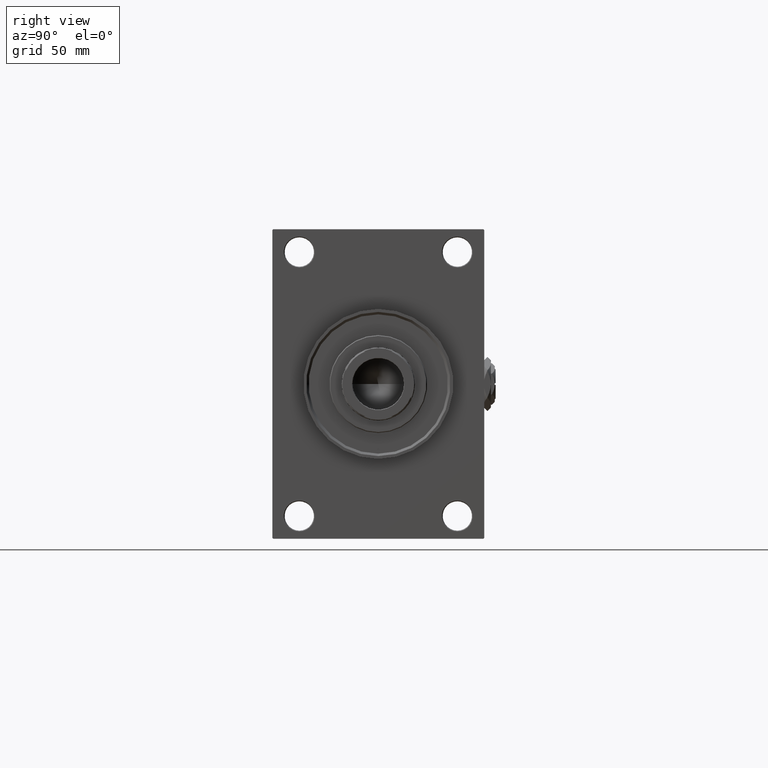
[diagram: clean part render]
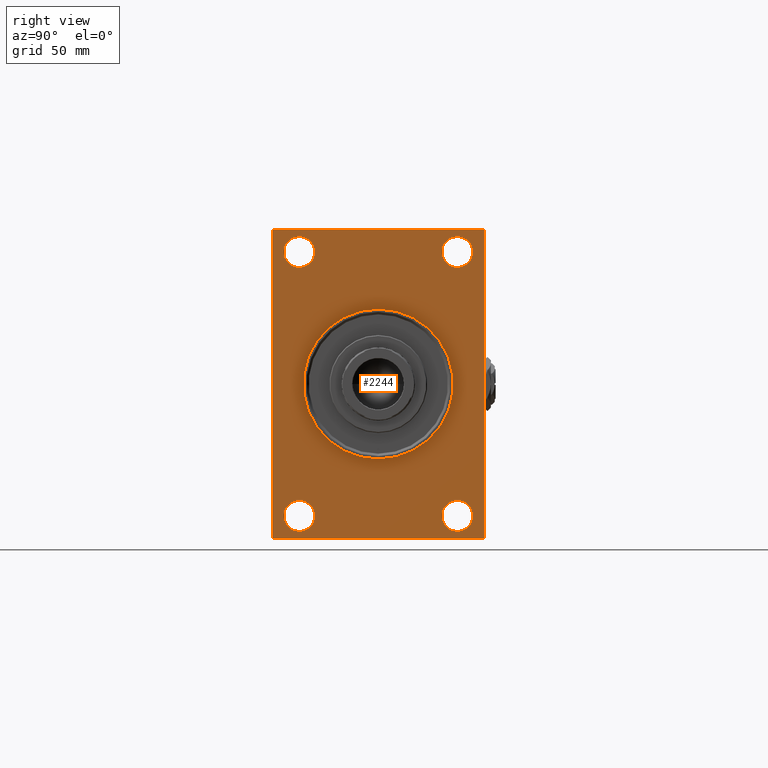
[diagram: same view with one face highlighted and labeled with its STEP entity id]
A machine part, right view. The second image highlights one B-rep face of the part: STEP entity #2244.
In plain terms, the highlighted planar face has unit normal (-1, 0, 0).
Its self-contained STEP definition (entity closure, byte-faithful):
#29 = AXIS2_PLACEMENT_3D ( 'NONE', #19294, #4827, #12688 ) ;
#286 = CARTESIAN_POINT ( 'NONE',  ( 306.0000000000000000, -65.00000000000001421, 94.99999999999997158 ) ) ;
#371 = VERTEX_POINT ( 'NONE', #4751 ) ;
#781 = CARTESIAN_POINT ( 'NONE',  ( 306.0000000000000000, 64.49999999999998579, -95.00000000000001421 ) ) ;
#982 = DIRECTION ( 'NONE',  ( 0.000000000000000000, 0.000000000000000000, 1.000000000000000000 ) ) ;
#1227 = EDGE_CURVE ( 'NONE', #8393, #14297, #33932, .T. ) ;
#1360 = VERTEX_POINT ( 'NONE', #32409 ) ;
#1395 = EDGE_CURVE ( 'NONE', #37040, #371, #35557, .T. ) ;
#1881 = AXIS2_PLACEMENT_3D ( 'NONE', #8275, #46465, #23735 ) ;
#1916 = DIRECTION ( 'NONE',  ( 0.000000000000000000, 0.7071067811865868746, -0.7071067811865081598 ) ) ;
#2050 = ORIENTED_EDGE ( 'NONE', *, *, #47845, .T. ) ;
#2214 = DIRECTION ( 'NONE',  ( 0.000000000000000000, 0.000000000000000000, 1.000000000000000000 ) ) ;
#2227 = FACE_BOUND ( 'NONE', #28604, .T. ) ;
#2244 = ADVANCED_FACE ( 'NONE', ( #2227, #28825, #29065, #25762, #48498, #33097 ), #21235, .F. ) ;
#2354 = LINE ( 'NONE', #33231, #19690 ) ;
#2472 = CARTESIAN_POINT ( 'NONE',  ( 306.0000000000000000, 48.50000000000000711, 81.00000000000000000 ) ) ;
#2657 = CARTESIAN_POINT ( 'NONE',  ( 306.0000000000000000, -64.50000000000001421, -95.00000000000002842 ) ) ;
#3032 = ORIENTED_EDGE ( 'NONE', *, *, #32580, .T. ) ;
#3362 = DIRECTION ( 'NONE',  ( 0.000000000000000000, 0.000000000000000000, 1.000000000000000000 ) ) ;
#3897 = CARTESIAN_POINT ( 'NONE',  ( 306.0000000000000000, 0.000000000000000000, 0.000000000000000000 ) ) ;
#3974 = VERTEX_POINT ( 'NONE', #36168 ) ;
#4751 = CARTESIAN_POINT ( 'NONE',  ( 306.0000000000000000, 48.50000000000000711, -71.49999999999990052 ) ) ;
#4827 = DIRECTION ( 'NONE',  ( -1.000000000000000000, 0.000000000000000000, -0.000000000000000000 ) ) ;
#7307 = DIRECTION ( 'NONE',  ( -1.000000000000000000, 0.000000000000000000, -0.000000000000000000 ) ) ;
#7624 = VERTEX_POINT ( 'NONE', #41760 ) ;
#7822 = CARTESIAN_POINT ( 'NONE',  ( 306.0000000000000000, 0.000000000000000000, 0.000000000000000000 ) ) ;
#7946 = EDGE_CURVE ( 'NONE', #371, #37040, #12702, .T. ) ;
#8275 = CARTESIAN_POINT ( 'NONE',  ( 306.0000000000000000, -48.49999999999999289, -81.00000000000001421 ) ) ;
#8393 = VERTEX_POINT ( 'NONE', #12460 ) ;
#8403 = DIRECTION ( 'NONE',  ( 0.000000000000000000, -1.000000000000000000, 0.000000000000000000 ) ) ;
#8457 = EDGE_CURVE ( 'NONE', #18742, #7624, #12212, .T. ) ;
#8519 = CARTESIAN_POINT ( 'NONE',  ( 306.0000000000000000, 48.50000000000000711, 90.50000000000007105 ) ) ;
#8799 = LINE ( 'NONE', #36378, #27736 ) ;
#8820 = EDGE_CURVE ( 'NONE', #13783, #1360, #41880, .T. ) ;
#9132 = ORIENTED_EDGE ( 'NONE', *, *, #18020, .T. ) ;
#9526 = VECTOR ( 'NONE', #15594, 1000.000000000000000 ) ;
#9812 = CARTESIAN_POINT ( 'NONE',  ( 306.0000000000000000, -48.50000000000000000, 71.49999999999994316 ) ) ;
#10351 = EDGE_CURVE ( 'NONE', #33666, #31197, #11680, .T. ) ;
#10612 = VECTOR ( 'NONE', #1916, 1000.000000000000000 ) ;
#10640 = ORIENTED_EDGE ( 'NONE', *, *, #41613, .T. ) ;
#11144 = VERTEX_POINT ( 'NONE', #14017 ) ;
#11680 = LINE ( 'NONE', #286, #45903 ) ;
#11852 = DIRECTION ( 'NONE',  ( 0.000000000000000000, 0.000000000000000000, 1.000000000000000000 ) ) ;
#11869 = ORIENTED_EDGE ( 'NONE', *, *, #20863, .T. ) ;
#12212 = LINE ( 'NONE', #46583, #25672 ) ;
#12460 = CARTESIAN_POINT ( 'NONE',  ( 306.0000000000000000, -48.50000000000000000, 90.50000000000007105 ) ) ;
#12688 = DIRECTION ( 'NONE',  ( 0.000000000000000000, 0.000000000000000000, 1.000000000000000000 ) ) ;
#12702 = CIRCLE ( 'NONE', #40170, 9.500000000000119016 ) ;
#13783 = VERTEX_POINT ( 'NONE', #781 ) ;
#14017 = CARTESIAN_POINT ( 'NONE',  ( 306.0000000000000000, 48.50000000000000711, 71.49999999999994316 ) ) ;
#14297 = VERTEX_POINT ( 'NONE', #9812 ) ;
#14594 = CARTESIAN_POINT ( 'NONE',  ( 306.0000000000000000, 5.633375276077824704E-15, -46.00000000000000000 ) ) ;
#15594 = DIRECTION ( 'NONE',  ( -0.000000000000000000, 0.7071067811865573427, 0.7071067811865378028 ) ) ;
#15727 = DIRECTION ( 'NONE',  ( 0.000000000000000000, 0.000000000000000000, -1.000000000000000000 ) ) ;
#17231 = ORIENTED_EDGE ( 'NONE', *, *, #8457, .T. ) ;
#18020 = EDGE_CURVE ( 'NONE', #14297, #8393, #29930, .T. ) ;
#18071 = CIRCLE ( 'NONE', #1881, 9.500000000000119016 ) ;
#18087 = CARTESIAN_POINT ( 'NONE',  ( 306.0000000000000000, -48.49999999999999289, -90.50000000000014211 ) ) ;
#18195 = AXIS2_PLACEMENT_3D ( 'NONE', #2472, #32354, #33347 ) ;
#18300 = DIRECTION ( 'NONE',  ( -1.000000000000000000, 0.000000000000000000, -0.000000000000000000 ) ) ;
#18742 = VERTEX_POINT ( 'NONE', #22614 ) ;
#19074 = EDGE_LOOP ( 'NONE', ( #20801, #11869, #24339, #23255, #22457, #49165, #17231, #32786 ) ) ;
#19155 = VERTEX_POINT ( 'NONE', #14594 ) ;
#19294 = CARTESIAN_POINT ( 'NONE',  ( 306.0000000000000000, -48.50000000000000000, 81.00000000000000000 ) ) ;
#19690 = VECTOR ( 'NONE', #48626, 1000.000000000000000 ) ;
#20343 = CARTESIAN_POINT ( 'NONE',  ( 306.0000000000000000, 64.99999999999997158, 94.50000000000002842 ) ) ;
#20801 = ORIENTED_EDGE ( 'NONE', *, *, #10351, .T. ) ;
#20863 = EDGE_CURVE ( 'NONE', #31197, #26112, #36579, .T. ) ;
#21235 = PLANE ( 'NONE',  #38801 ) ;
#21828 = DIRECTION ( 'NONE',  ( 0.000000000000000000, -1.000000000000000000, -1.067522139062650425E-16 ) ) ;
#21847 = AXIS2_PLACEMENT_3D ( 'NONE', #29934, #18300, #3362 ) ;
#22457 = ORIENTED_EDGE ( 'NONE', *, *, #24735, .F. ) ;
#22614 = CARTESIAN_POINT ( 'NONE',  ( 306.0000000000000000, 64.49999999999997158, 94.99999999999997158 ) ) ;
#22627 = CIRCLE ( 'NONE', #41166, 9.500000000000063949 ) ;
#23255 = ORIENTED_EDGE ( 'NONE', *, *, #8820, .T. ) ;
#23278 = DIRECTION ( 'NONE',  ( -1.000000000000000000, 0.000000000000000000, -0.000000000000000000 ) ) ;
#23498 = DIRECTION ( 'NONE',  ( 0.000000000000000000, 0.000000000000000000, 1.000000000000000000 ) ) ;
#23525 = ORIENTED_EDGE ( 'NONE', *, *, #1395, .T. ) ;
#23650 = VECTOR ( 'NONE', #28691, 1000.000000000000114 ) ;
#23735 = DIRECTION ( 'NONE',  ( 0.000000000000000000, 0.000000000000000000, 1.000000000000000000 ) ) ;
#23827 = CARTESIAN_POINT ( 'NONE',  ( 306.0000000000000000, -65.00000000000001421, -94.50000000000008527 ) ) ;
#24008 = DIRECTION ( 'NONE',  ( 0.000000000000000000, 0.000000000000000000, -1.000000000000000000 ) ) ;
#24041 = ORIENTED_EDGE ( 'NONE', *, *, #1227, .T. ) ;
#24139 = LINE ( 'NONE', #36025, #23650 ) ;
#24339 = ORIENTED_EDGE ( 'NONE', *, *, #47176, .F. ) ;
#24735 = EDGE_CURVE ( 'NONE', #39708, #1360, #8799, .T. ) ;
#25179 = CARTESIAN_POINT ( 'NONE',  ( 306.0000000000000000, -65.00000000000001421, 94.49999999999997158 ) ) ;
#25246 = DIRECTION ( 'NONE',  ( 0.000000000000000000, 7.304098846218135653E-17, -1.000000000000000000 ) ) ;
#25338 = EDGE_CURVE ( 'NONE', #19155, #48893, #30991, .T. ) ;
#25672 = VECTOR ( 'NONE', #8403, 1000.000000000000000 ) ;
#25762 = FACE_BOUND ( 'NONE', #49928, .T. ) ;
#26112 = VERTEX_POINT ( 'NONE', #42310 ) ;
#27736 = VECTOR ( 'NONE', #25246, 1000.000000000000000 ) ;
#28031 = DIRECTION ( 'NONE',  ( -1.000000000000000000, 0.000000000000000000, -0.000000000000000000 ) ) ;
#28086 = ORIENTED_EDGE ( 'NONE', *, *, #39706, .F. ) ;
#28604 = EDGE_LOOP ( 'NONE', ( #9132, #24041 ) ) ;
#28691 = DIRECTION ( 'NONE',  ( -0.000000000000000000, -0.7071067811864985009, -0.7071067811865965336 ) ) ;
#28825 = FACE_BOUND ( 'NONE', #36727, .T. ) ;
#28833 = EDGE_CURVE ( 'NONE', #39708, #18742, #2354, .T. ) ;
#29065 = FACE_BOUND ( 'NONE', #49175, .T. ) ;
#29930 = CIRCLE ( 'NONE', #21847, 9.500000000000063949 ) ;
#29934 = CARTESIAN_POINT ( 'NONE',  ( 306.0000000000000000, -48.50000000000000000, 81.00000000000000000 ) ) ;
#30583 = CARTESIAN_POINT ( 'NONE',  ( 306.0000000000000000, 48.50000000000000711, -81.00000000000001421 ) ) ;
#30647 = CIRCLE ( 'NONE', #35582, 46.00000000000000000 ) ;
#30898 = CARTESIAN_POINT ( 'NONE',  ( 306.0000000000000000, 48.50000000000000711, -90.50000000000014211 ) ) ;
#30991 = CIRCLE ( 'NONE', #49536, 46.00000000000000000 ) ;
#31197 = VERTEX_POINT ( 'NONE', #23827 ) ;
#31717 = DIRECTION ( 'NONE',  ( 0.000000000000000000, 0.000000000000000000, -1.000000000000000000 ) ) ;
#32354 = DIRECTION ( 'NONE',  ( -1.000000000000000000, 0.000000000000000000, -0.000000000000000000 ) ) ;
#32409 = CARTESIAN_POINT ( 'NONE',  ( 306.0000000000000000, 64.99999999999998579, -94.50000000000002842 ) ) ;
#32515 = VECTOR ( 'NONE', #21828, 1000.000000000000000 ) ;
#32580 = EDGE_CURVE ( 'NONE', #11144, #44656, #49675, .T. ) ;
#32786 = ORIENTED_EDGE ( 'NONE', *, *, #48034, .T. ) ;
#32789 = CARTESIAN_POINT ( 'NONE',  ( 306.0000000000000000, 0.000000000000000000, 46.00000000000000000 ) ) ;
#33097 = FACE_OUTER_BOUND ( 'NONE', #19074, .T. ) ;
#33172 = EDGE_LOOP ( 'NONE', ( #28086, #40667 ) ) ;
#33231 = CARTESIAN_POINT ( 'NONE',  ( 306.0000000000000000, 64.49999999999997158, 94.99999999999997158 ) ) ;
#33347 = DIRECTION ( 'NONE',  ( 0.000000000000000000, 0.000000000000000000, 1.000000000000000000 ) ) ;
#33666 = VERTEX_POINT ( 'NONE', #25179 ) ;
#33932 = CIRCLE ( 'NONE', #29, 9.500000000000063949 ) ;
#34733 = AXIS2_PLACEMENT_3D ( 'NONE', #38447, #23278, #982 ) ;
#34804 = CARTESIAN_POINT ( 'NONE',  ( 306.0000000000000000, 64.99999999999998579, -94.50000000000002842 ) ) ;
#35557 = CIRCLE ( 'NONE', #34733, 9.500000000000119016 ) ;
#35582 = AXIS2_PLACEMENT_3D ( 'NONE', #3897, #43327, #31717 ) ;
#36025 = CARTESIAN_POINT ( 'NONE',  ( 306.0000000000000000, -65.00000000000001421, 94.49999999999997158 ) ) ;
#36168 = CARTESIAN_POINT ( 'NONE',  ( 306.0000000000000000, -48.49999999999999289, -71.49999999999990052 ) ) ;
#36367 = ORIENTED_EDGE ( 'NONE', *, *, #7946, .T. ) ;
#36378 = CARTESIAN_POINT ( 'NONE',  ( 306.0000000000000000, 64.99999999999997158, 94.99999999999997158 ) ) ;
#36407 = CARTESIAN_POINT ( 'NONE',  ( 306.0000000000000000, 0.000000000000000000, 0.000000000000000000 ) ) ;
#36579 = LINE ( 'NONE', #2657, #10612 ) ;
#36727 = EDGE_LOOP ( 'NONE', ( #48956, #2050 ) ) ;
#36760 = LINE ( 'NONE', #40783, #32515 ) ;
#37040 = VERTEX_POINT ( 'NONE', #30898 ) ;
#38447 = CARTESIAN_POINT ( 'NONE',  ( 306.0000000000000000, 48.50000000000000711, -81.00000000000001421 ) ) ;
#38801 = AXIS2_PLACEMENT_3D ( 'NONE', #36407, #40682, #41177 ) ;
#39706 = EDGE_CURVE ( 'NONE', #48893, #19155, #30647, .T. ) ;
#39708 = VERTEX_POINT ( 'NONE', #20343 ) ;
#40170 = AXIS2_PLACEMENT_3D ( 'NONE', #30583, #7307, #11852 ) ;
#40576 = AXIS2_PLACEMENT_3D ( 'NONE', #40668, #45182, #2214 ) ;
#40667 = ORIENTED_EDGE ( 'NONE', *, *, #25338, .F. ) ;
#40668 = CARTESIAN_POINT ( 'NONE',  ( 306.0000000000000000, -48.49999999999999289, -81.00000000000001421 ) ) ;
#40682 = DIRECTION ( 'NONE',  ( -1.000000000000000000, 0.000000000000000000, -0.000000000000000000 ) ) ;
#40783 = CARTESIAN_POINT ( 'NONE',  ( 306.0000000000000000, 64.99999999999998579, -95.00000000000001421 ) ) ;
#41166 = AXIS2_PLACEMENT_3D ( 'NONE', #46963, #28031, #23498 ) ;
#41177 = DIRECTION ( 'NONE',  ( -0.000000000000000000, 0.000000000000000000, 1.000000000000000000 ) ) ;
#41613 = EDGE_CURVE ( 'NONE', #44656, #11144, #22627, .T. ) ;
#41760 = CARTESIAN_POINT ( 'NONE',  ( 306.0000000000000000, -64.50000000000008527, 94.99999999999997158 ) ) ;
#41880 = LINE ( 'NONE', #34804, #9526 ) ;
#42310 = CARTESIAN_POINT ( 'NONE',  ( 306.0000000000000000, -64.50000000000001421, -95.00000000000002842 ) ) ;
#42965 = DIRECTION ( 'NONE',  ( 1.000000000000000000, 0.000000000000000000, 0.000000000000000000 ) ) ;
#43327 = DIRECTION ( 'NONE',  ( 1.000000000000000000, 0.000000000000000000, 0.000000000000000000 ) ) ;
#43817 = VERTEX_POINT ( 'NONE', #18087 ) ;
#44656 = VERTEX_POINT ( 'NONE', #8519 ) ;
#45182 = DIRECTION ( 'NONE',  ( -1.000000000000000000, 0.000000000000000000, -0.000000000000000000 ) ) ;
#45903 = VECTOR ( 'NONE', #15727, 1000.000000000000000 ) ;
#46465 = DIRECTION ( 'NONE',  ( -1.000000000000000000, 0.000000000000000000, -0.000000000000000000 ) ) ;
#46583 = CARTESIAN_POINT ( 'NONE',  ( 306.0000000000000000, 64.99999999999997158, 94.99999999999997158 ) ) ;
#46963 = CARTESIAN_POINT ( 'NONE',  ( 306.0000000000000000, 48.50000000000000711, 81.00000000000000000 ) ) ;
#47176 = EDGE_CURVE ( 'NONE', #13783, #26112, #36760, .T. ) ;
#47845 = EDGE_CURVE ( 'NONE', #3974, #43817, #49442, .T. ) ;
#48034 = EDGE_CURVE ( 'NONE', #7624, #33666, #24139, .T. ) ;
#48498 = FACE_BOUND ( 'NONE', #33172, .T. ) ;
#48626 = DIRECTION ( 'NONE',  ( 0.000000000000000000, -0.7071067811865868746, 0.7071067811865081598 ) ) ;
#48893 = VERTEX_POINT ( 'NONE', #32789 ) ;
#48956 = ORIENTED_EDGE ( 'NONE', *, *, #49736, .T. ) ;
#49165 = ORIENTED_EDGE ( 'NONE', *, *, #28833, .T. ) ;
#49175 = EDGE_LOOP ( 'NONE', ( #23525, #36367 ) ) ;
#49442 = CIRCLE ( 'NONE', #40576, 9.500000000000119016 ) ;
#49536 = AXIS2_PLACEMENT_3D ( 'NONE', #7822, #42965, #24008 ) ;
#49675 = CIRCLE ( 'NONE', #18195, 9.500000000000063949 ) ;
#49736 = EDGE_CURVE ( 'NONE', #43817, #3974, #18071, .T. ) ;
#49928 = EDGE_LOOP ( 'NONE', ( #3032, #10640 ) ) ;